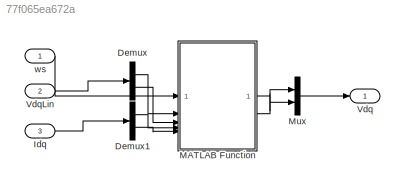
MODEL slx_77f065ea672a
KIND model
CONFIG AbsTol = auto
CONFIG EnableMultiTasking = off
CONFIG FixedStep = auto
CONFIG MaxStep = auto
CONFIG MinStep = auto
CONFIG RelTol = 1e-3
CONFIG SampleTimeConstraint = Unconstrained
CONFIG SolverName = VariableStepAuto
CONFIG StartTime = 0.0
CONFIG StopTime = 10.0
BLOCK [Demux] Demux
  Outputs = 2
BLOCK [Demux] Demux1
  Outputs = 2
BLOCK [Inport] Idq
  Port = 3
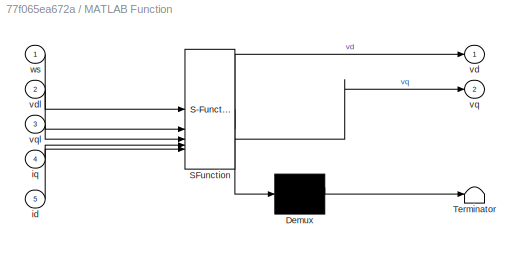
BLOCK [SubSystem] MATLAB Function
  ErrorFcn = Stateflow.Translate.translate
  PermitHierarchicalResolution = ExplicitOnly
  SFBlockType = MATLAB Function
  TreatAsAtomicUnit = on
BLOCK [Demux] MATLAB Function/ Demux 
  Outputs = 1
BLOCK [S-Function] MATLAB Function/ SFunction 
  EnableBusSupport = off
  FunctionName = sf_sfun
  PortCounts = [5 3]
  SFcnIsStateOwnerBlock = off
  SFunctionDeploymentMode = off
  Tag = Stateflow S-Function 2
BLOCK [Terminator] MATLAB Function/ Terminator 
BLOCK [Inport] MATLAB Function/id
  Port = 5
BLOCK [Inport] MATLAB Function/iq
  Port = 4
BLOCK [Outport] MATLAB Function/vd
BLOCK [Inport] MATLAB Function/vdl
  Port = 2
BLOCK [Outport] MATLAB Function/vq
  Port = 2
BLOCK [Inport] MATLAB Function/vql
  Port = 3
BLOCK [Inport] MATLAB Function/ws
BLOCK [Mux] Mux
  DisplayOption = bar
  Inputs = 2
BLOCK [Outport] Vdq
BLOCK [Inport] VdqLin
  Port = 2
BLOCK [Inport] ws
LINE Demux1:1 -> MATLAB Function:4
LINE Demux1:2 -> MATLAB Function:5
LINE Demux:1 -> MATLAB Function:2
LINE Demux:2 -> MATLAB Function:3
LINE Idq:1 -> Demux1:1
LINE MATLAB Function:1 -> Mux:1
LINE MATLAB Function:2 -> Mux:2
LINE Mux:1 -> Vdq:1
LINE VdqLin:1 -> Demux:1
LINE ws:1 -> MATLAB Function:1
CHART MATLAB Function states=1 transitions=1
  STATE_LABEL 'eML_blk_kernel()'
  STATE_LABEL 'SCRIPT:\nfunction [vd,vq]= decouple(ws,vdl,vql,iq,id)\nLd = 1e-4;\nLq = 1e-3;\nphi = 0.23;\nvd = -ws*Lq*iq + vdl*Ld;\nvq = ws*phi + ws*Ld*id + vql*Lq;\n\n'
CHART  states=0 transitions=0
